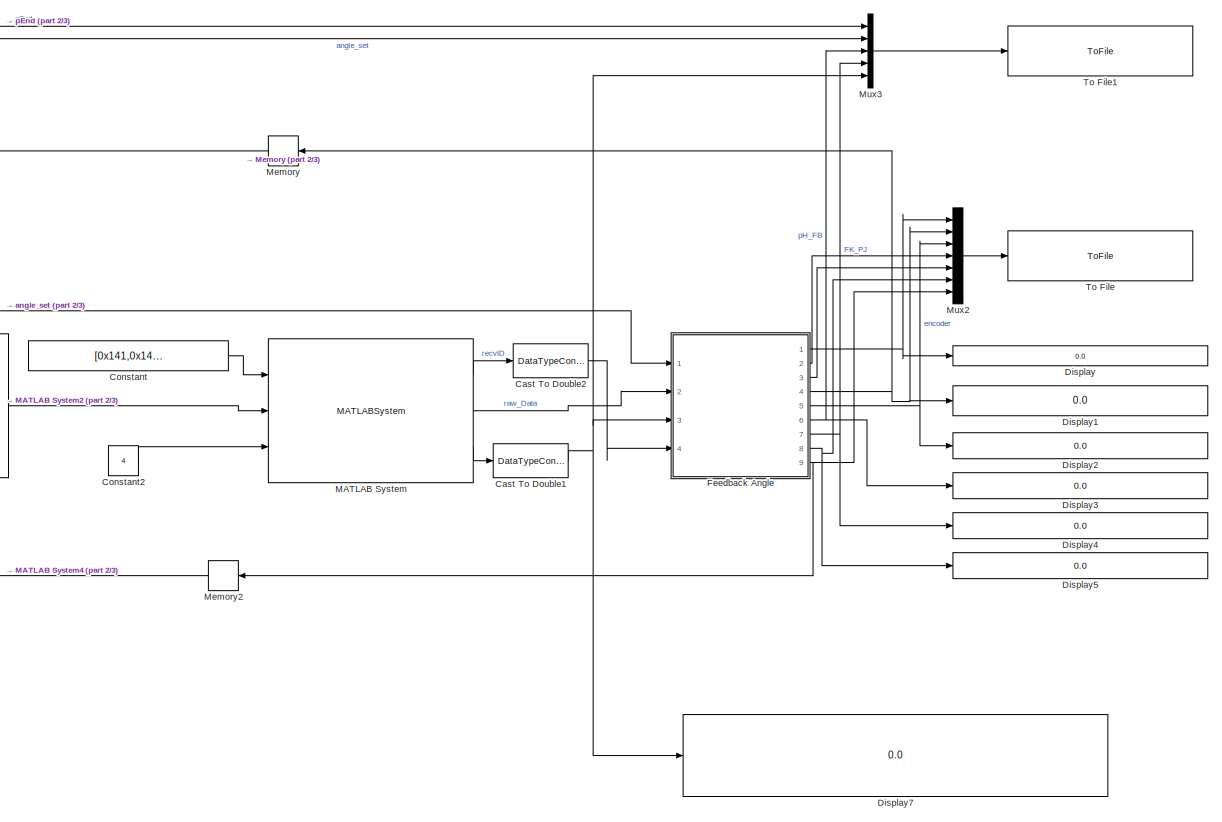
[diagram: root canvas - part 1/3, right side, full height]
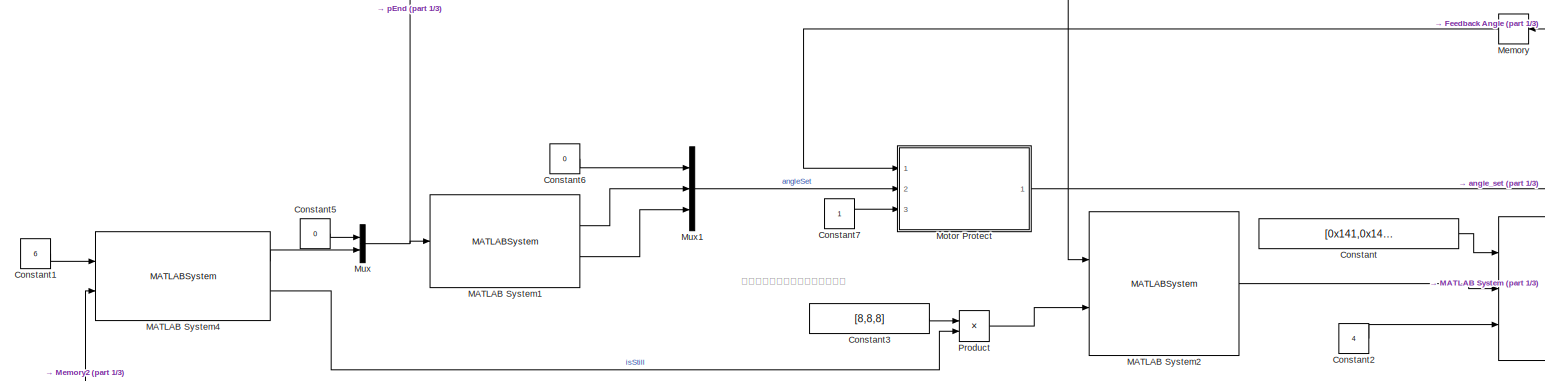
[diagram: root canvas - part 2/3, top left region]
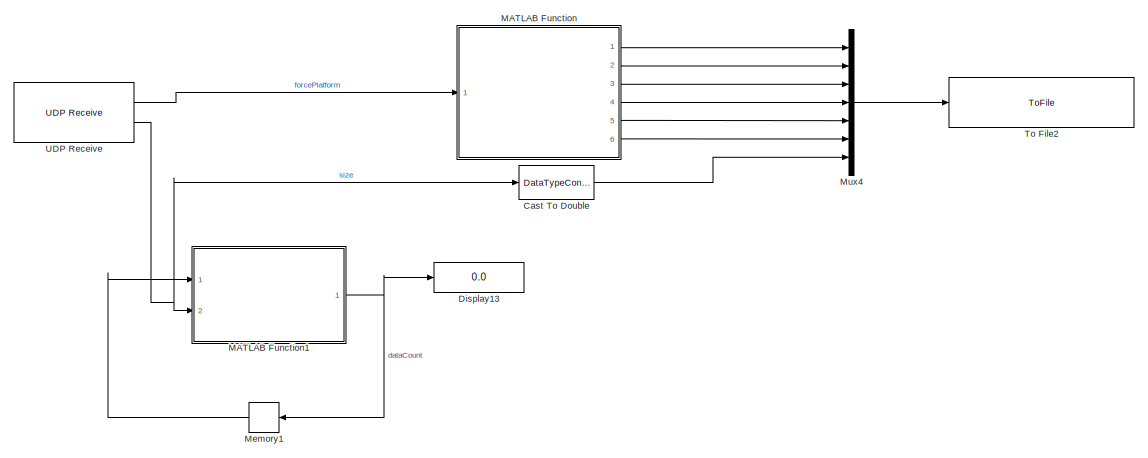
[diagram: root canvas - part 3/3, bottom left region]
MODEL slx_85af30f1df1c
KIND model
CONFIG AbsTol = auto
CONFIG EnableMultiTasking = on
CONFIG FixedStep = 0.004
CONFIG MaxStep = auto
CONFIG MinStep = auto
CONFIG RelTol = 1e-3
CONFIG SampleTimeConstraint = Unconstrained
CONFIG SolverName = FixedStepAuto
CONFIG StartTime = 0.0
CONFIG StopTime = 600
BLOCK [DataTypeConversion] Cast To Double
  OutDataTypeStr = double
  RndMeth = Floor
  SaturateOnIntegerOverflow = off
BLOCK [DataTypeConversion] Cast To Double1
  OutDataTypeStr = double
  RndMeth = Floor
  SaturateOnIntegerOverflow = off
BLOCK [DataTypeConversion] Cast To Double2
  OutDataTypeStr = double
  RndMeth = Floor
  SaturateOnIntegerOverflow = off
BLOCK [Constant] Constant
  OutDataTypeStr = int32
  Value = [0x141,0x142,0x143,0x144]
BLOCK [Constant] Constant1
  Value = 6
BLOCK [Constant] Constant2
  OutDataTypeStr = int32
  Value = 4
BLOCK [Constant] Constant3
  Value = [8,8,8]
BLOCK [Constant] Constant5
  Value = 0
BLOCK [Constant] Constant6
  OutDataTypeStr = double
  Value = 0
BLOCK [Constant] Constant7
BLOCK [Display] Display
  Commented = on
  Decimation = 1
  Ports = [1]
BLOCK [Display] Display1
  Decimation = 1
  Ports = [1]
BLOCK [Display] Display13
  Commented = on
  Decimation = 1
  Ports = [1]
BLOCK [Display] Display2
  Commented = on
  Decimation = 1
  Ports = [1]
BLOCK [Display] Display3
  Commented = on
  Decimation = 1
  Ports = [1]
BLOCK [Display] Display4
  Commented = on
  Decimation = 1
  Ports = [1]
BLOCK [Display] Display5
  Commented = on
  Decimation = 1
  Ports = [1]
BLOCK [Display] Display7
  Commented = on
  Decimation = 1
  Ports = [1]
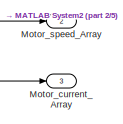
[diagram: Feedback Angle - part 1/5, top left region]
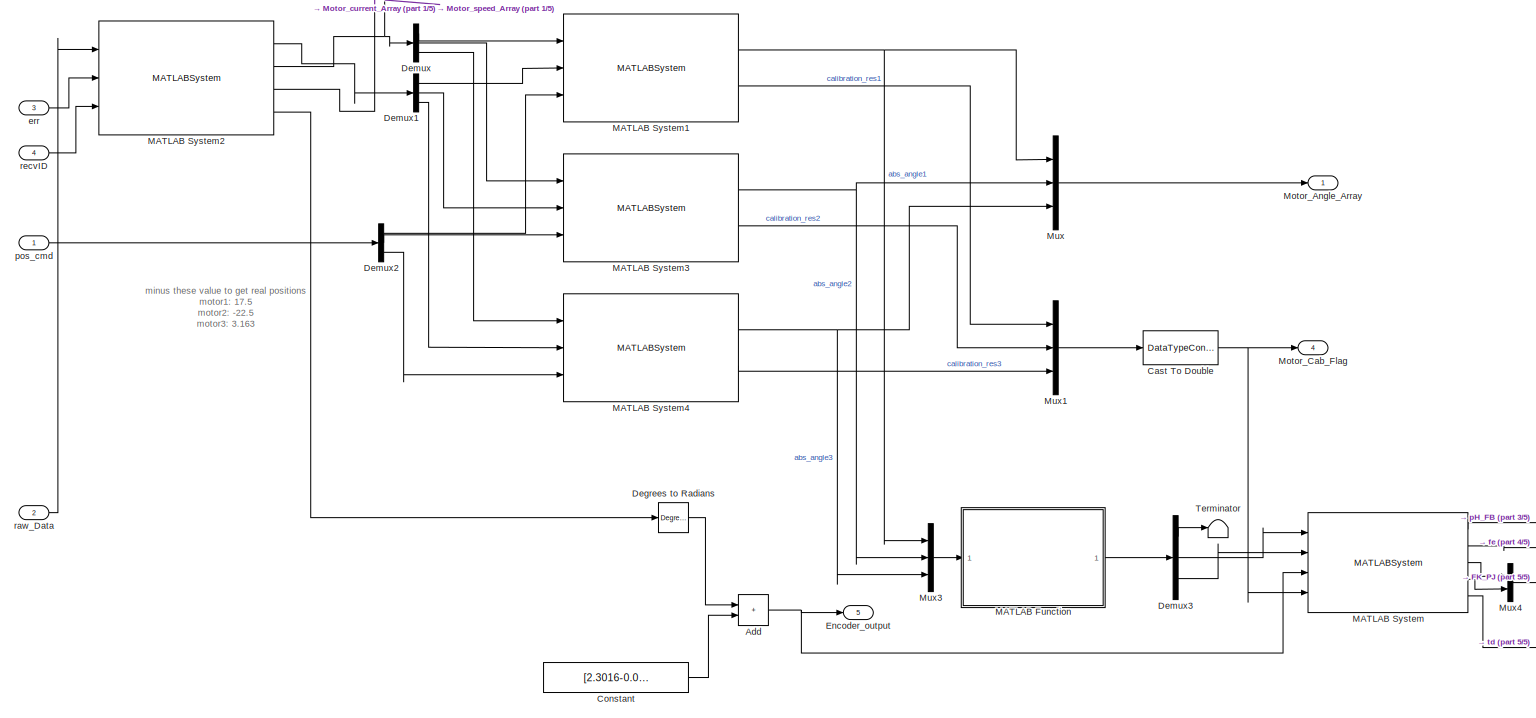
[diagram: Feedback Angle - part 2/5, most of the canvas]
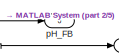
[diagram: Feedback Angle - part 3/5, bottom right region]
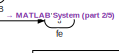
[diagram: Feedback Angle - part 4/5, bottom right region]
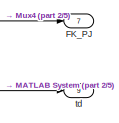
[diagram: Feedback Angle - part 5/5, bottom right region]
BLOCK [SubSystem] Feedback Angle
  Ports = [4, 9]
  RequestExecContextInheritance = off
BLOCK [Sum] Feedback Angle/Add
  IconShape = rectangular
  Ports = [2, 1]
BLOCK [DataTypeConversion] Feedback Angle/Cast To Double
  OutDataTypeStr = double
  RndMeth = Floor
  SaturateOnIntegerOverflow = off
BLOCK [Constant] Feedback Angle/Constant
  Value = [2.3016-0.0053,-0.0227+3.1307]
BLOCK [Reference] Feedback Angle/Degrees to Radians  REF=simulink_extras/Transformations/Degrees to
Radians
  Ports = [1, 1]
  SourceBlock = simulink_extras/Transformations/Degrees to\nRadians
  SourceProductBaseCode = SL
  SourceType = DegreesToRadians
BLOCK [Demux] Feedback Angle/Demux
  Outputs = 3
  Ports = [1, 3]
BLOCK [Demux] Feedback Angle/Demux1
  Outputs = 3
  Ports = [1, 3]
BLOCK [Demux] Feedback Angle/Demux2
  Outputs = 3
  Ports = [1, 3]
BLOCK [Demux] Feedback Angle/Demux3
  Outputs = 3
  Ports = [1, 3]
BLOCK [Outport] Feedback Angle/Encoder_output
  Port = 5
BLOCK [Outport] Feedback Angle/FK_PJ
  Port = 7
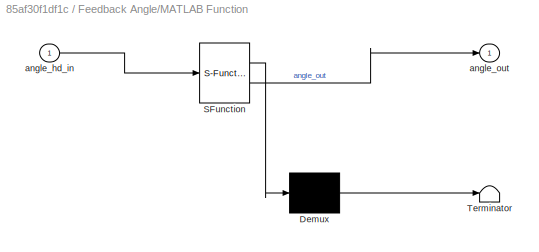
BLOCK [SubSystem] Feedback Angle/MATLAB Function
  ErrorFcn = Stateflow.Translate.translate
  PermitHierarchicalResolution = ExplicitOnly
  Ports = [1, 1]
  RequestExecContextInheritance = off
  SFBlockType = MATLAB Function
  TreatAsAtomicUnit = on
BLOCK [Demux] Feedback Angle/MATLAB Function/ Demux 
  Outputs = 1
  Ports = [1, 1]
BLOCK [S-Function] Feedback Angle/MATLAB Function/ SFunction 
  EnableBusSupport = on
  FunctionName = sf_sfun
  PortCounts = [1 2]
  Ports = [1, 2]
  SFcnIsStateOwnerBlock = off
  SFunctionDeploymentMode = off
  Tag = Stateflow S-Function 4
BLOCK [Terminator] Feedback Angle/MATLAB Function/ Terminator 
BLOCK [Inport] Feedback Angle/MATLAB Function/angle_hd_in
BLOCK [Outport] Feedback Angle/MATLAB Function/angle_out
BLOCK [MATLABSystem] Feedback Angle/MATLAB System
  MaskDisplay = disp('FK_sgl');\nport_label('input',1,'theta2');\nport_label('input',2,'theta3');\nport_label('input',3,'encoderArray');\nport_label('input',4,'motorCab');\nport_label('output',1,'pH');\nport_label('output',2,'fe');\nport_label('output',3,'BDG');\nport_label('output',4,'DGH');\nport_label('output',5,'td');
  MaskType = FK_sgl
  Ports = [4, 5]
  SimulateUsing = Code generation
  System = FK_sgl
  lower_stiff = 1
  upper_stiff = 1
BLOCK [MATLABSystem] Feedback Angle/MATLAB System1
  MaskDisplay = disp('MotorAngle');\nport_label('input',1,'speed');\nport_label('input',2,'sgl_angle');\nport_label('input',3,'pos_des');\nport_label('output',1,'abs_angle');\nport_label('output',2,'calibration');  <repeated x3 — deduplicated; at blocks: MATLAB System1, MATLAB System3, MATLAB System4>
  MaskType = MotorAngle
  Ports = [3, 2]
  SimulateUsing = Code generation
  System = MotorAngle
  angleOff = -17.5
BLOCK [MATLABSystem] Feedback Angle/MATLAB System2
  MaskDisplay = disp('canDecoder');\nport_label('input',1,'rawData');\nport_label('input',2,'err');\nport_label('input',3,'recvID');\nport_label('output',1,'angle');\nport_label('output',2,'speed');\nport_label('output',3,'current');\nport_label('output',4,'encoder');
  MaskType = canDecoder
  Ports = [3, 4]
  SimulateUsing = Code generation
  System = canDecoder
BLOCK [MATLABSystem] Feedback Angle/MATLAB System3
  MaskType = MotorAngle
  Ports = [3, 2]
  SimulateUsing = Code generation
  System = MotorAngle
  angleOff = 22.5
BLOCK [MATLABSystem] Feedback Angle/MATLAB System4
  MaskType = MotorAngle
  Ports = [3, 2]
  SimulateUsing = Code generation
  System = MotorAngle
  angleOff = -3.163
BLOCK [Outport] Feedback Angle/Motor_Angle_Array
BLOCK [Outport] Feedback Angle/Motor_Cab_Flag
  Port = 4
BLOCK [Outport] Feedback Angle/Motor_current_Array
  Port = 3
BLOCK [Outport] Feedback Angle/Motor_speed_Array
  Port = 2
BLOCK [Mux] Feedback Angle/Mux
  DisplayOption = bar
  Inputs = 3
  Ports = [3, 1]
BLOCK [Mux] Feedback Angle/Mux1
  DisplayOption = bar
  Inputs = 3
  Ports = [3, 1]
BLOCK [Mux] Feedback Angle/Mux3
  DisplayOption = bar
  Inputs = 3
  Ports = [3, 1]
BLOCK [Mux] Feedback Angle/Mux4
  DisplayOption = bar
  Inputs = 2
  Ports = [2, 1]
BLOCK [Terminator] Feedback Angle/Terminator
BLOCK [Inport] Feedback Angle/err
  Port = 3
BLOCK [Outport] Feedback Angle/fe
  Port = 8
BLOCK [Outport] Feedback Angle/pH_FB
  Port = 6
BLOCK [Inport] Feedback Angle/pos_cmd
BLOCK [Inport] Feedback Angle/raw_Data
  OutDataTypeStr = uint8
  Port = 2
BLOCK [Inport] Feedback Angle/recvID
  Port = 4
BLOCK [Outport] Feedback Angle/td
  Port = 9
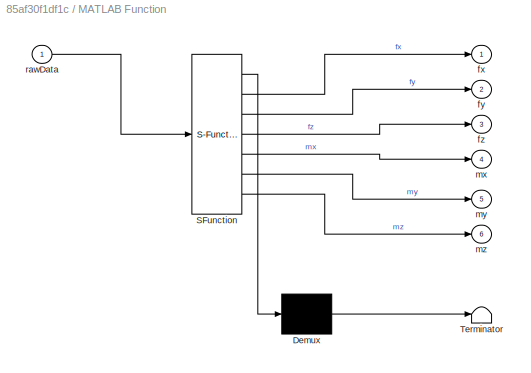
BLOCK [SubSystem] MATLAB Function
  ErrorFcn = Stateflow.Translate.translate
  PermitHierarchicalResolution = ExplicitOnly
  Ports = [1, 6]
  RequestExecContextInheritance = off
  SFBlockType = MATLAB Function
  TreatAsAtomicUnit = on
BLOCK [Demux] MATLAB Function/ Demux 
  Outputs = 1
  Ports = [1, 1]
BLOCK [S-Function] MATLAB Function/ SFunction 
  EnableBusSupport = on
  FunctionName = sf_sfun
  PortCounts = [1 7]
  Ports = [1, 7]
  SFcnIsStateOwnerBlock = off
  SFunctionDeploymentMode = off
  Tag = Stateflow S-Function 5
BLOCK [Terminator] MATLAB Function/ Terminator 
BLOCK [Outport] MATLAB Function/fx
BLOCK [Outport] MATLAB Function/fy
  Port = 2
BLOCK [Outport] MATLAB Function/fz
  Port = 3
BLOCK [Outport] MATLAB Function/mx
  Port = 4
BLOCK [Outport] MATLAB Function/my
  Port = 5
BLOCK [Outport] MATLAB Function/mz
  Port = 6
BLOCK [Inport] MATLAB Function/rawData
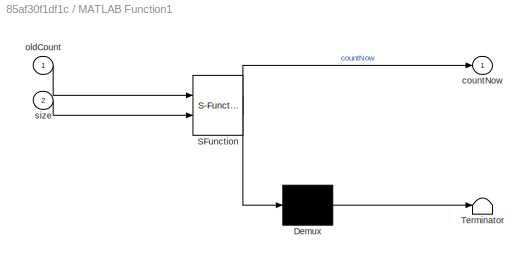
BLOCK [SubSystem] MATLAB Function1
  ErrorFcn = Stateflow.Translate.translate
  PermitHierarchicalResolution = ExplicitOnly
  Ports = [2, 1]
  RequestExecContextInheritance = off
  SFBlockType = MATLAB Function
  TreatAsAtomicUnit = on
BLOCK [Demux] MATLAB Function1/ Demux 
  Outputs = 1
  Ports = [1, 1]
BLOCK [S-Function] MATLAB Function1/ SFunction 
  EnableBusSupport = on
  FunctionName = sf_sfun
  PortCounts = [2 2]
  Ports = [2, 2]
  SFcnIsStateOwnerBlock = off
  SFunctionDeploymentMode = off
  Tag = Stateflow S-Function 6
BLOCK [Terminator] MATLAB Function1/ Terminator 
BLOCK [Outport] MATLAB Function1/countNow
BLOCK [Inport] MATLAB Function1/oldCount
BLOCK [Inport] MATLAB Function1/size
  Port = 2
BLOCK [MATLABSystem] MATLAB System
  MaskDisplay = disp('CAN_Driver');\nport_label('input',1,'canID_array');\nport_label('input',2,'send_RawData');\nport_label('input',3,'dev_Num');\nport_label('output',1,'recv_ID');\nport_label('output',2,'recv_rawData');\nport_label('output',3,'err');
  MaskType = canSendRecv
  Ports = [3, 3]
  System = canSendRecv
  canPort = can1
BLOCK [MATLABSystem] MATLAB System1
  MaskDisplay = disp('IK_sgl');\nport_label('input',1,'pEnd');\nport_label('output',1,'theta2');\nport_label('output',2,'theta3');
  MaskType = IK_sgl
  Ports = [1, 2]
  SimulateUsing = Code generation
  System = IK_sgl
BLOCK [MATLABSystem] MATLAB System2
  MaskDisplay = disp('Multi_posCtr');\nport_label('input',1,'pos_arr');\nport_label('input',2,'speed_arr');\nport_label('output',1,'cmd');
  MaskType = Multi_posCtr
  Ports = [2, 1]
  SimulateUsing = Code generation
  System = Multi_posCtr
BLOCK [MATLABSystem] MATLAB System4
  MaskDisplay = disp('jump_closed');\nport_label('input',1,'EN');\nport_label('input',2,'tdFlag');\nport_label('output',1,'zTra');\nport_label('output',2,'isStill');
  MaskType = jump_closed
  OffsetTime = 0
  Ports = [2, 2]
  SampleTime = 0.004
  SimulateUsing = Code generation
  System = jump_closed
  TickTime = 0
  lh = 0.07
  tdy = 0.04
  tsk = 0.15
  tst = 0.05
  tst_wt = 0.1
  zOff = -0.50
BLOCK [Memory] Memory
  InitialCondition = [0;0;0]
  NameLocation = top
BLOCK [Memory] Memory1
  NameLocation = top
BLOCK [Memory] Memory2
  NameLocation = top
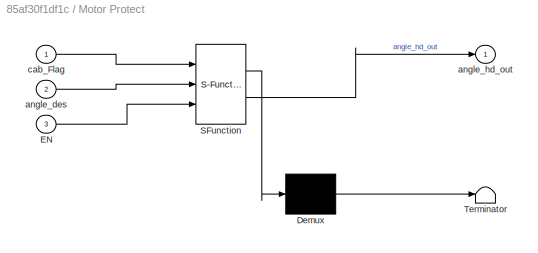
BLOCK [SubSystem] Motor Protect
  ErrorFcn = Stateflow.Translate.translate
  PermitHierarchicalResolution = ExplicitOnly
  Ports = [3, 1]
  RequestExecContextInheritance = off
  SFBlockType = MATLAB Function
  TreatAsAtomicUnit = on
BLOCK [Demux] Motor Protect/ Demux 
  Outputs = 1
  Ports = [1, 1]
BLOCK [S-Function] Motor Protect/ SFunction 
  EnableBusSupport = on
  FunctionName = sf_sfun
  PortCounts = [3 2]
  Ports = [3, 2]
  SFcnIsStateOwnerBlock = off
  SFunctionDeploymentMode = off
  Tag = Stateflow S-Function 2
BLOCK [Terminator] Motor Protect/ Terminator 
BLOCK [Inport] Motor Protect/EN
  Port = 3
BLOCK [Inport] Motor Protect/angle_des
  Port = 2
BLOCK [Outport] Motor Protect/angle_hd_out
BLOCK [Inport] Motor Protect/cab_Flag
BLOCK [Mux] Mux
  DisplayOption = bar
  Inputs = 2
  Ports = [2, 1]
BLOCK [Mux] Mux1
  DisplayOption = bar
  Inputs = 3
  Ports = [3, 1]
BLOCK [Mux] Mux2
  DisplayOption = bar
  Inputs = 7
  Ports = [7, 1]
BLOCK [Mux] Mux3
  DisplayOption = bar
  Inputs = 5
  Ports = [5, 1]
BLOCK [Mux] Mux4
  DisplayOption = bar
  Inputs = 7
  Ports = [7, 1]
BLOCK [Product] Product
  Ports = [2, 1]
BLOCK [ToFile] To File
  Filename = sl_dataRec1.mat
  MatrixName = MotorAngle_cab_Encoder_motorSpeed_motorCurrent_fe_td
  Ports = [1]
BLOCK [ToFile] To File1
  Filename = sl_dataRec2.mat
  MatrixName = pEnd_AngleSegDeg_pHFB_FKPJ_err
  Ports = [1]
BLOCK [ToFile] To File2
  Filename = sl_dataRec3.mat
  MatrixName = fx_fy_fz_mx_my_mz_size
  Ports = [1]
BLOCK [Reference] UDP Receive  REF=raspberrypiNetworklib/UDP Receive
  Ports = [0, 2]
  SourceBlock = raspberrypiNetworklib/UDP Receive
  SourceProductBaseCode = RASPPI
  SourceType = UDP Receive
ANNOTATION (root): 面对电机输出轴，顺时针旋转为正
ANNOTATION Feedback Angle: minus these value to get real positions motor1: 17.5 motor2: -22.5 motor3: 3.163
NET Cast To Double1:1 -> Display7:1, Feedback Angle:3, Mux3:5
LINE Cast To Double2:1 -> Feedback Angle:4
LINE Cast To Double:1 -> Mux4:7
LINE Constant1:1 -> MATLAB System4:1
LINE Constant2:1 -> MATLAB System:3
LINE Constant3:1 -> Product:1
LINE Constant5:1 -> Mux:1
LINE Constant6:1 -> Mux1:1
LINE Constant7:1 -> Motor Protect:3
LINE Constant:1 -> MATLAB System:1
NET Feedback Angle/Add:1 -> Feedback Angle/Encoder_output:1, Feedback Angle/MATLAB System:3
NET Feedback Angle/Cast To Double:1 -> Feedback Angle/MATLAB System:4, Feedback Angle/Motor_Cab_Flag:1
LINE Feedback Angle/Constant:1 -> Feedback Angle/Add:2
LINE Feedback Angle/Degrees to Radians:1 -> Feedback Angle/Add:1
LINE Feedback Angle/Demux1:1 -> Feedback Angle/MATLAB System1:2
LINE Feedback Angle/Demux1:2 -> Feedback Angle/MATLAB System3:2
LINE Feedback Angle/Demux1:3 -> Feedback Angle/MATLAB System4:2
LINE Feedback Angle/Demux2:1 -> Feedback Angle/MATLAB System1:3
LINE Feedback Angle/Demux2:2 -> Feedback Angle/MATLAB System3:3
LINE Feedback Angle/Demux2:3 -> Feedback Angle/MATLAB System4:3
LINE Feedback Angle/Demux3:1 -> Feedback Angle/Terminator:1
LINE Feedback Angle/Demux3:2 -> Feedback Angle/MATLAB System:1
LINE Feedback Angle/Demux3:3 -> Feedback Angle/MATLAB System:2
LINE Feedback Angle/Demux:1 -> Feedback Angle/MATLAB System1:1
LINE Feedback Angle/Demux:2 -> Feedback Angle/MATLAB System3:1
LINE Feedback Angle/Demux:3 -> Feedback Angle/MATLAB System4:1
LINE Feedback Angle/MATLAB Function:1 -> Feedback Angle/Demux3:1
NET Feedback Angle/MATLAB System1:1 -> Feedback Angle/Mux3:1, Feedback Angle/Mux:1
LINE Feedback Angle/MATLAB System1:2 -> Feedback Angle/Mux1:1
LINE Feedback Angle/MATLAB System2:1 -> Feedback Angle/Demux1:1
NET Feedback Angle/MATLAB System2:2 -> Feedback Angle/Demux:1, Feedback Angle/Motor_speed_Array:1
LINE Feedback Angle/MATLAB System2:3 -> Feedback Angle/Motor_current_Array:1
LINE Feedback Angle/MATLAB System2:4 -> Feedback Angle/Degrees to Radians:1
NET Feedback Angle/MATLAB System3:1 -> Feedback Angle/Mux3:2, Feedback Angle/Mux:2
LINE Feedback Angle/MATLAB System3:2 -> Feedback Angle/Mux1:2
NET Feedback Angle/MATLAB System4:1 -> Feedback Angle/Mux3:3, Feedback Angle/Mux:3
LINE Feedback Angle/MATLAB System4:2 -> Feedback Angle/Mux1:3
LINE Feedback Angle/MATLAB System:1 -> Feedback Angle/pH_FB:1
LINE Feedback Angle/MATLAB System:2 -> Feedback Angle/fe:1
LINE Feedback Angle/MATLAB System:3 -> Feedback Angle/Mux4:1
LINE Feedback Angle/MATLAB System:4 -> Feedback Angle/Mux4:2
LINE Feedback Angle/MATLAB System:5 -> Feedback Angle/td:1
LINE Feedback Angle/Mux1:1 -> Feedback Angle/Cast To Double:1
LINE Feedback Angle/Mux3:1 -> Feedback Angle/MATLAB Function:1
LINE Feedback Angle/Mux4:1 -> Feedback Angle/FK_PJ:1
LINE Feedback Angle/Mux:1 -> Feedback Angle/Motor_Angle_Array:1
LINE Feedback Angle/err:1 -> Feedback Angle/MATLAB System2:2
LINE Feedback Angle/pos_cmd:1 -> Feedback Angle/Demux2:1
LINE Feedback Angle/raw_Data:1 -> Feedback Angle/MATLAB System2:1
LINE Feedback Angle/recvID:1 -> Feedback Angle/MATLAB System2:3
NET Feedback Angle:1 -> Display:1, Mux2:1
LINE Feedback Angle:2 -> Mux2:4
LINE Feedback Angle:3 -> Mux2:5
NET Feedback Angle:4 -> Display1:1, Memory:1, Mux2:2
NET Feedback Angle:5 -> Display2:1, Mux2:3
NET Feedback Angle:6 -> Display3:1, Mux3:3
NET Feedback Angle:7 -> Display4:1, Mux3:4
NET Feedback Angle:8 -> Display5:1, Mux2:6
NET Feedback Angle:9 -> Memory2:1, Mux2:7
NET MATLAB Function1:1 -> Display13:1, Memory1:1
LINE MATLAB Function:1 -> Mux4:1
LINE MATLAB Function:2 -> Mux4:2
LINE MATLAB Function:3 -> Mux4:3
LINE MATLAB Function:4 -> Mux4:4
LINE MATLAB Function:5 -> Mux4:5
LINE MATLAB Function:6 -> Mux4:6
LINE MATLAB System1:1 -> Mux1:2
LINE MATLAB System1:2 -> Mux1:3
LINE MATLAB System2:1 -> MATLAB System:2
LINE MATLAB System4:1 -> Mux:2
LINE MATLAB System4:2 -> Product:2
LINE MATLAB System:1 -> Cast To Double2:1
LINE MATLAB System:2 -> Feedback Angle:2
LINE MATLAB System:3 -> Cast To Double1:1
LINE Memory1:1 -> MATLAB Function1:1
LINE Memory2:1 -> MATLAB System4:2
LINE Memory:1 -> Motor Protect:1
NET Motor Protect:1 -> Feedback Angle:1, MATLAB System2:1, Mux3:2
LINE Mux1:1 -> Motor Protect:2
LINE Mux2:1 -> To File:1
LINE Mux3:1 -> To File1:1
LINE Mux4:1 -> To File2:1
NET Mux:1 -> MATLAB System1:1, Mux3:1
LINE Product:1 -> MATLAB System2:2
LINE UDP Receive:1 -> MATLAB Function:1
NET UDP Receive:2 -> Cast To Double:1, MATLAB Function1:2
note: NET lines group one-source signal fan-out (src -> all destinations, sorted); 1:1 wires keep LINE
CHART Motor Protect states=1 transitions=1
  STATE_LABEL 'eML_blk_kernel()'
  STATE_LABEL 'SCRIPT:\nfunction angle_hd_out = fcn(cab_Flag,angle_des,EN)\nif sum(cab_Flag)<2.5\n    angle_hd_out=[0;0;0];\nelse\n    if EN>0.5\n        angle_hd_out=angle_des/pi*180*(-1);\n    else\n        angle_hd_out=[0;0;0];\n    end\nend\nif angle_hd_out(1)>10\n    angle_hd_out(1)=10;\nend\nif angle_hd_out(1)<-10\n    angle_hd_out(1)=-10;\nend\nif angle_hd_out(2)>30\n    angle_hd_out(2)=30;\nend\nif angle_hd_out(2)<-10\n    a...<+125ch>'
CHART Feedback Angle/MATLAB Function states=1 transitions=1
  STATE_LABEL 'eML_blk_kernel()'
  STATE_LABEL 'SCRIPT:\nfunction angle_out = fcn(angle_hd_in)\nangle_out=angle_hd_in/180*pi*(-1);'
CHART MATLAB Function states=1 transitions=1
  STATE_LABEL 'eML_blk_kernel()'
  STATE_LABEL "SCRIPT:\nfunction [fx,fy,fz,mx,my,mz] = fcn(rawData)\n% angle : single loop position, degree\n% speed : speed after the reducer, degree per second\nfx=double(typecast(rawData(1:4),'single'));\nfy=double(typecast(rawData(5:8),'single'));\nfz=double(typecast(rawData(9:12),'single'));\nmx=double(typecast(rawData(13:16),'single'));\nmy=double(typecast(rawData(17:20),'single'));\nmz=double(typecast(rawData(21:2...<+17ch>"
CHART MATLAB Function1 states=1 transitions=1
  STATE_LABEL 'eML_blk_kernel()'
  STATE_LABEL 'SCRIPT:\nfunction countNow = fcn(oldCount,size)\n% angle : single loop position, degree\n% speed : speed after the reducer, degree per second\nif size>23\n    countNow=oldCount+1;\nelse\n    countNow=oldCount;\nend\n\n'
CHART  states=0 transitions=0
CHART  states=0 transitions=0
CHART  states=0 transitions=0
CHART  states=0 transitions=0
